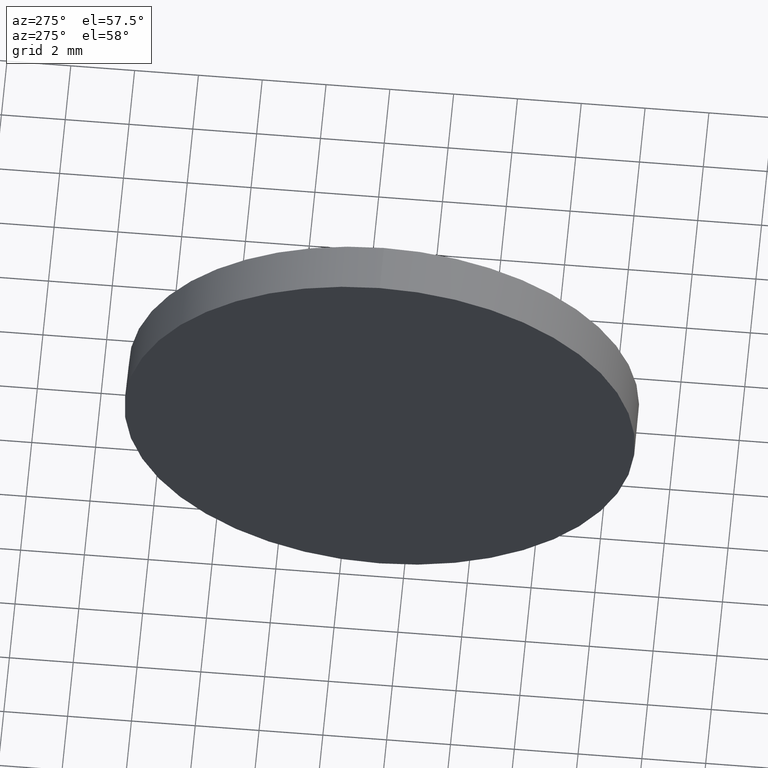
[diagram: clean part render]
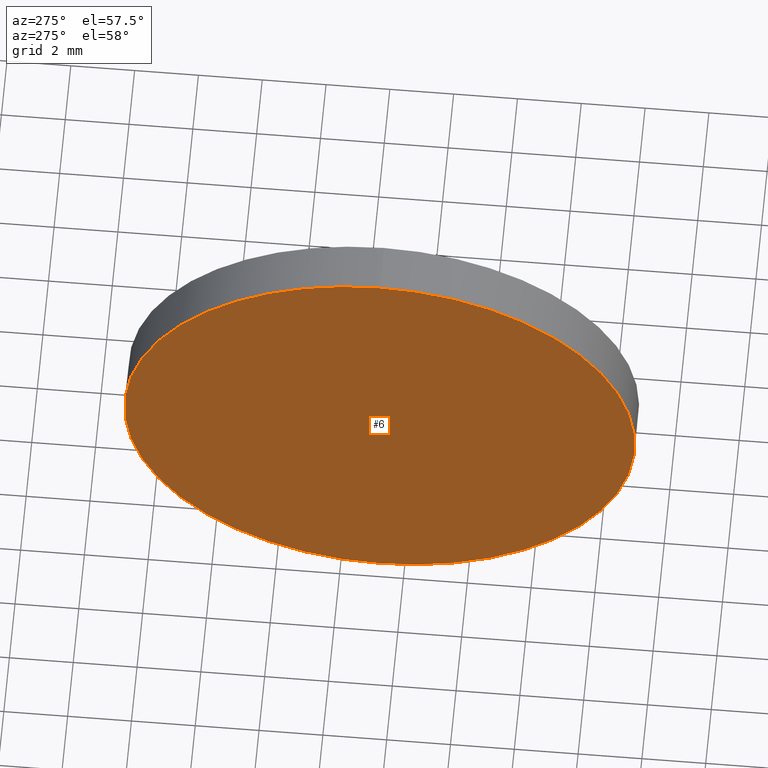
[diagram: same view with one face highlighted and labeled with its STEP entity id]
A machine part, auxiliary view. The second image highlights one B-rep face of the part: STEP entity #6.
In plain terms, the highlighted planar face has unit normal (1, 0, 0).
Its self-contained STEP definition (entity closure, byte-faithful):
#6 = ADVANCED_FACE ( 'NONE', ( #35 ), #155, .F. ) ;
#16 = CARTESIAN_POINT ( 'NONE',  ( 440.2712780236154800, 0.7681557501930741400, 0.0000000000000000000 ) ) ;
#24 = VERTEX_POINT ( 'NONE', #126 ) ;
#35 = FACE_OUTER_BOUND ( 'NONE', #74, .T. ) ;
#43 = ORIENTED_EDGE ( 'NONE', *, *, #94, .T. ) ;
#56 = ORIENTED_EDGE ( 'NONE', *, *, #67, .T. ) ;
#59 = DIRECTION ( 'NONE',  ( -1.000000000000000000, -0.0000000000000000000, -0.0000000000000000000 ) ) ;
#63 = CARTESIAN_POINT ( 'NONE',  ( 440.2712780236154800, 0.7681557501930741400, 0.0000000000000000000 ) ) ;
#65 = VERTEX_POINT ( 'NONE', #149 ) ;
#67 = EDGE_CURVE ( 'NONE', #65, #24, #92, .T. ) ;
#68 = DIRECTION ( 'NONE',  ( -1.000000000000000000, -0.0000000000000000000, -0.0000000000000000000 ) ) ;
#70 = DIRECTION ( 'NONE',  ( 0.0000000000000000000, 0.0000000000000000000, 1.000000000000000000 ) ) ;
#73 = AXIS2_PLACEMENT_3D ( 'NONE', #16, #68, #70 ) ;
#74 = EDGE_LOOP ( 'NONE', ( #43, #56 ) ) ;
#75 = DIRECTION ( 'NONE',  ( 1.000000000000000000, 0.0000000000000000000, 0.0000000000000000000 ) ) ;
#78 = AXIS2_PLACEMENT_3D ( 'NONE', #181, #59, #178 ) ;
#90 = DIRECTION ( 'NONE',  ( 0.0000000000000000000, 0.0000000000000000000, -1.000000000000000000 ) ) ;
#92 = CIRCLE ( 'NONE', #73, 8.000000000000000000 ) ;
#94 = EDGE_CURVE ( 'NONE', #24, #65, #103, .T. ) ;
#103 = CIRCLE ( 'NONE', #78, 8.000000000000000000 ) ;
#119 = AXIS2_PLACEMENT_3D ( 'NONE', #63, #75, #90 ) ;
#126 = CARTESIAN_POINT ( 'NONE',  ( 440.2712780236154800, 0.7681557501930741400, 8.000000000000000000 ) ) ;
#149 = CARTESIAN_POINT ( 'NONE',  ( 440.2712780236154800, 0.7681557501930751400, -8.000000000000000000 ) ) ;
#155 = PLANE ( 'NONE',  #119 ) ;
#178 = DIRECTION ( 'NONE',  ( 0.0000000000000000000, 0.0000000000000000000, 1.000000000000000000 ) ) ;
#181 = CARTESIAN_POINT ( 'NONE',  ( 440.2712780236154800, 0.7681557501930741400, 0.0000000000000000000 ) ) ;